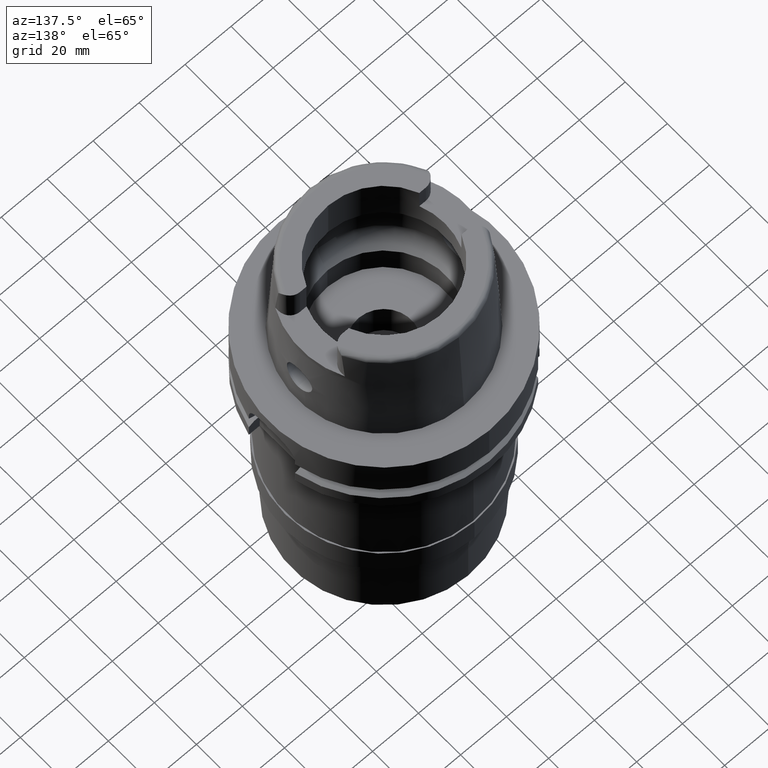
[diagram: clean part render]
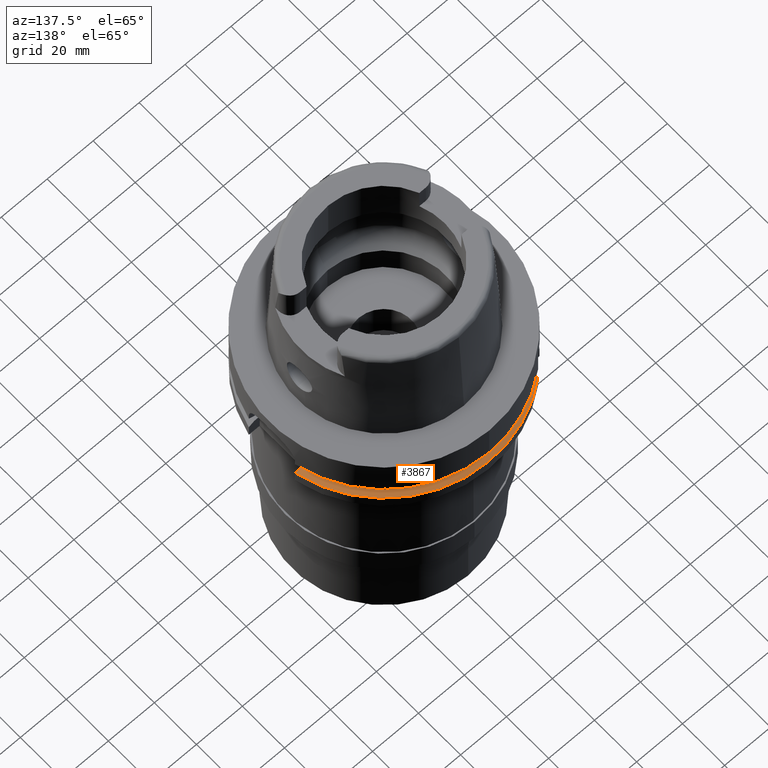
[diagram: same view with one face highlighted and labeled with its STEP entity id]
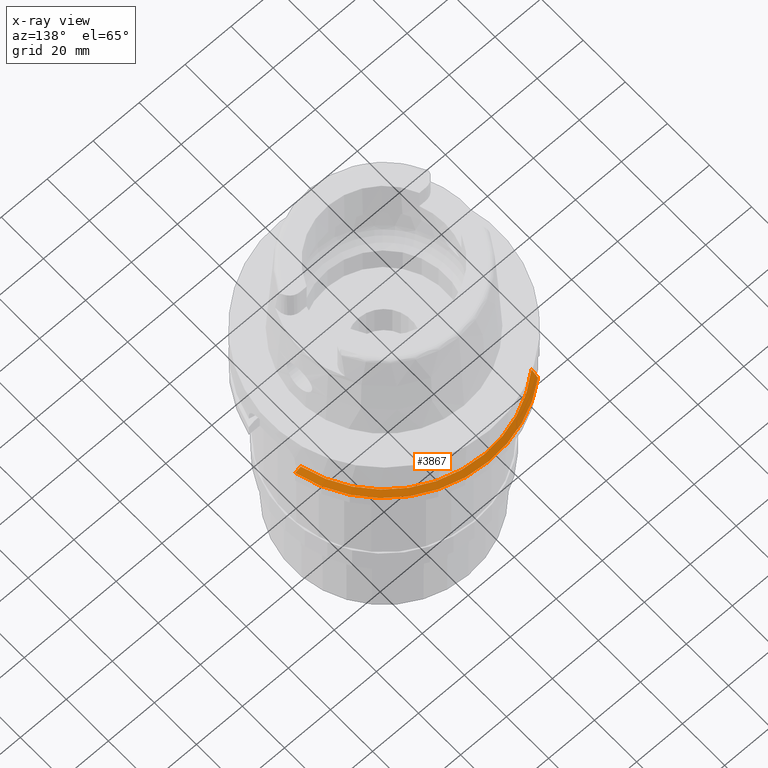
[diagram: x-ray of the same camera — body ghosted, the highlighted face saturated]
A machine part, auxiliary view. The second image highlights one B-rep face of the part: STEP entity #3867.
The next image is the same camera in x-ray: the body ghosted, the highlighted face saturated — about 0% of this face is hidden behind the body in this view.
In plain terms, the highlighted conical surface has half-angle 60 deg.
Its self-contained STEP definition (entity closure, byte-faithful):
#1626=CARTESIAN_POINT('',(0.E0,0.E0,-2.1875E1));
#1627=DIRECTION('',(0.E0,0.E0,-1.E0));
#1628=DIRECTION('',(-6.614507215588E-1,7.499886285467E-1,0.E0));
#1629=AXIS2_PLACEMENT_3D('',#1626,#1627,#1628);
#1634=CARTESIAN_POINT('',(0.E0,0.E0,-2.1875E1));
#1635=DIRECTION('',(0.E0,0.E0,-1.E0));
#1636=DIRECTION('',(0.E0,1.E0,0.E0));
#1637=AXIS2_PLACEMENT_3D('',#1634,#1635,#1636);
#1658=CARTESIAN_POINT('',(-3.150000097290E1,3.571639618387E1,-2.1875E1));
#1659=CARTESIAN_POINT('',(-3.150000097290E1,3.605789002739E1,
-2.202286891919E1));
#1660=CARTESIAN_POINT('',(-3.150000002062E1,3.674380017620E1,
-2.232173054121E1));
#1661=CARTESIAN_POINT('',(-3.149999846846E1,3.778158713266E1,
-2.277929841518E1));
#1662=CARTESIAN_POINT('',(-3.150000355985E1,3.847935690323E1,
-2.309050172006E1));
#1663=CARTESIAN_POINT('',(-3.150000355985E1,3.882975374284E1,
-2.324760820806E1));
#1668=CARTESIAN_POINT('',(0.E0,0.E0,-2.324759526419E1));
#1669=DIRECTION('',(0.E0,0.E0,-1.E0));
#1670=DIRECTION('',(-6.3E-1,7.765951326142E-1,0.E0));
#1671=AXIS2_PLACEMENT_3D('',#1668,#1669,#1670);
#1676=CARTESIAN_POINT('',(0.E0,0.E0,-2.324759526419E1));
#1677=DIRECTION('',(0.E0,0.E0,-1.E0));
#1678=DIRECTION('',(0.E0,1.E0,0.E0));
#1679=AXIS2_PLACEMENT_3D('',#1676,#1677,#1678);
#1684=CARTESIAN_POINT('',(4.877499359303E1,1.1E1,-2.324759526419E1));
#1685=CARTESIAN_POINT('',(4.850399904748E1,1.1E1,-2.309496975038E1));
#1686=CARTESIAN_POINT('',(4.796191616323E1,1.1E1,-2.278979543230E1));
#1687=CARTESIAN_POINT('',(4.714851446810E1,1.1E1,-2.233225649733E1));
#1688=CARTESIAN_POINT('',(4.660605711265E1,1.1E1,-2.202738808211E1));
#1689=CARTESIAN_POINT('',(4.633477721644E1,1.1E1,-2.1875E1));
#2477=CARTESIAN_POINT('',(-3.150000355985E1,3.882975374284E1,
-2.324760820806E1));
#2478=VERTEX_POINT('',#2477);
#2479=VERTEX_POINT('',#1658);
#2497=CARTESIAN_POINT('',(4.877499359303E1,1.1E1,-2.324759526419E1));
#2498=VERTEX_POINT('',#2497);
#2499=CARTESIAN_POINT('',(0.E0,5.E1,-2.324759526419E1));
#2500=VERTEX_POINT('',#2499);
#2536=VERTEX_POINT('',#1689);
#2537=CARTESIAN_POINT('',(-1.598721155460E-14,4.762259526419E1,-2.1875E1));
#2538=VERTEX_POINT('',#2537);
#3854=CARTESIAN_POINT('',(0.E0,0.E0,-2.256129763210E1));
#3855=DIRECTION('',(0.E0,0.E0,-1.E0));
#3856=DIRECTION('',(0.E0,-1.E0,0.E0));
#3857=AXIS2_PLACEMENT_3D('',#3854,#3855,#3856);
#3858=CONICAL_SURFACE('',#3857,4.881129763209E1,6.E1);
#3859=ORIENTED_EDGE('',*,*,#3520,.T.);
#3860=ORIENTED_EDGE('',*,*,#3551,.T.);
#3861=ORIENTED_EDGE('',*,*,#3549,.T.);
#3862=ORIENTED_EDGE('',*,*,#3576,.T.);
#3863=ORIENTED_EDGE('',*,*,#3846,.F.);
#3864=ORIENTED_EDGE('',*,*,#3844,.F.);
#3865=EDGE_LOOP('',(#3859,#3860,#3861,#3862,#3863,#3864));
#3866=FACE_OUTER_BOUND('',#3865,.F.);
#1630=CIRCLE('',#1629,4.762259526419E1);
#1638=CIRCLE('',#1637,4.762259526419E1);
#1664=B_SPLINE_CURVE_WITH_KNOTS('',3,(#1658,#1659,#1660,#1661,#1662,#1663),
.UNSPECIFIED.,.F.,.F.,(4,1,1,4),(0.E0,3.333333333333E-1,6.666666666667E-1,1.E0),
.UNSPECIFIED.);
#1672=CIRCLE('',#1671,5.E1);
#1680=CIRCLE('',#1679,5.E1);
#1690=B_SPLINE_CURVE_WITH_KNOTS('',3,(#1684,#1685,#1686,#1687,#1688,#1689),
.UNSPECIFIED.,.F.,.F.,(4,1,1,4),(0.E0,3.333333333333E-1,6.666666666667E-1,1.E0),
.UNSPECIFIED.);
#3520=EDGE_CURVE('',#2479,#2478,#1664,.T.);
#3549=EDGE_CURVE('',#2500,#2498,#1680,.T.);
#3551=EDGE_CURVE('',#2478,#2500,#1672,.T.);
#3576=EDGE_CURVE('',#2498,#2536,#1690,.T.);
#3844=EDGE_CURVE('',#2479,#2538,#1630,.T.);
#3846=EDGE_CURVE('',#2538,#2536,#1638,.T.);
#3867=ADVANCED_FACE('',(#3866),#3858,.T.);